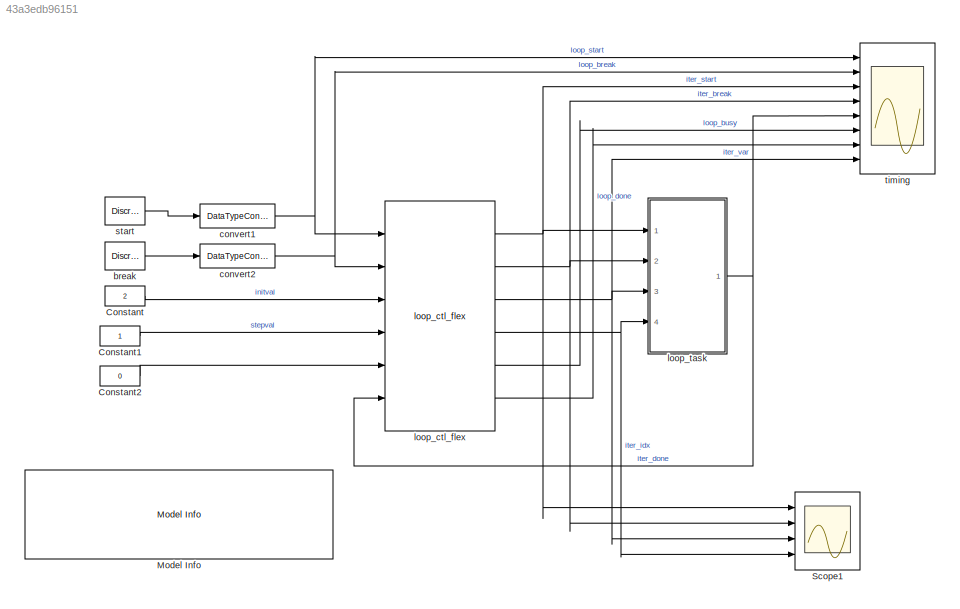
MODEL slx_43a3edb96151
KIND model
CONFIG AbsTol = auto
CONFIG EnableMultiTasking = off
CONFIG FixedStep = auto
CONFIG MaxStep = auto
CONFIG MinStep = auto
CONFIG RelTol = 1e-3
CONFIG SampleTimeConstraint = Unconstrained
CONFIG Solver = FixedStepDiscrete
CONFIG SolverName = FixedStepDiscrete
CONFIG StartTime = 0.0
CONFIG StopTime = 400
BLOCK [Constant] Constant
  OutDataTypeStr = fixdt(1,8,4)
  SampleTime = 1
  Value = 2
BLOCK [Constant] Constant1
  OutDataTypeStr = fixdt(1,8,4)
  SampleTime = 1
BLOCK [Constant] Constant2
  OutDataTypeStr = fixdt(0,3,0)
  SampleTime = 1
  Value = 0
BLOCK [Reference] Model Info  REF=simulink/Model-Wide
Utilities/Model Info
  Ports = []
  SourceBlock = simulink/Model-Wide\nUtilities/Model Info
  SourceProductBaseCode = SL
  SourceProductName = Simulink
  SourceType = CMBlock
BLOCK [Scope] Scope1
  Floating = off
  NumInputPorts = 4
  Ports = [4]
  ScopeSpecificationString = Simulink.scopes.TimeScopeBlockCfg('CurrentConfiguration', extmgr.ConfigurationSet(extmgr.Configuration('Core','General UI',true),extmgr.Configuration('Core','Source UI',true),extmgr.Configuration('Sources','WiredSimulink',true,'DataLoggingVariableName','ScopeData1'),extmgr.Configuration('Visuals','Time Domain',true,'SerializedDisplays',{struct('MinYLimReal','-0.125','MaxYLimReal','1.125','YLabelRe...<+3438ch>
BLOCK [DiscretePulseGenerator] break
  Period = 200
  PhaseDelay = 106
  Ports = [0, 1]
BLOCK [DataTypeConversion] convert1
  OutDataTypeStr = boolean
  RndMeth = Floor
  SaturateOnIntegerOverflow = off
BLOCK [DataTypeConversion] convert2
  OutDataTypeStr = boolean
  RndMeth = Floor
  SaturateOnIntegerOverflow = off
BLOCK [Reference] loop_ctl_flex  REF=lib_dsphdlcontrol_v1/loop_ctl_flex  (lib defined in slx_169a934beb0a)
  Ports = [6, 6]
  SourceBlock = lib_dsphdlcontrol_v1/loop_ctl_flex
  SourceProductName = DSPHDL Library
  SourceType = Flexible Loop Controller
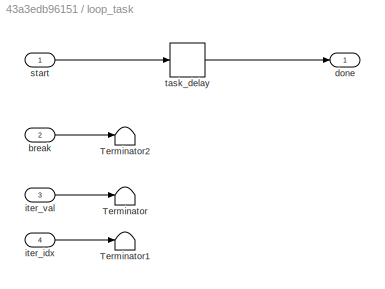
BLOCK [SubSystem] loop_task
  Ports = [4, 1]
  RequestExecContextInheritance = off
BLOCK [Terminator] loop_task/Terminator
BLOCK [Terminator] loop_task/Terminator1
BLOCK [Terminator] loop_task/Terminator2
BLOCK [Inport] loop_task/break
  IconDisplay = Port number
  Port = 2
BLOCK [Outport] loop_task/done
  IconDisplay = Port number
BLOCK [Inport] loop_task/iter_idx
  IconDisplay = Port number
  Port = 4
BLOCK [Inport] loop_task/iter_val
  IconDisplay = Port number
  Port = 3
BLOCK [Inport] loop_task/start
  IconDisplay = Port number
BLOCK [Delay] loop_task/task_delay
  DelayLength = 3
  InitialCondition = 0
  InputPortMap = u0
  Ports = [1, 1]
BLOCK [DiscretePulseGenerator] start
  Period = 100
  PhaseDelay = 5
  Ports = [0, 1]
BLOCK [Scope] timing
  Floating = off
  NumInputPorts = 8
  Ports = [8]
  ScopeSpecificationString = Simulink.scopes.TimeScopeBlockCfg('CurrentConfiguration', extmgr.ConfigurationSet(extmgr.Configuration('Core','General UI',true),extmgr.Configuration('Core','Source UI',true),extmgr.Configuration('Sources','WiredSimulink',true),extmgr.Configuration('Visuals','Time Domain',true,'SerializedDisplays',{struct('MinYLimReal','-0.125','MaxYLimReal','1.125','YLabelReal','','MinYLimMag','0.00000','MaxYLimM...<+6197ch>
LINE Constant1:1 -> loop_ctl_flex:4
LINE Constant2:1 -> loop_ctl_flex:5
LINE Constant:1 -> loop_ctl_flex:3
LINE break:1 -> convert2:1
NET convert1:1 -> loop_ctl_flex:1, timing:1
NET convert2:1 -> loop_ctl_flex:2, timing:2
NET loop_ctl_flex:1 -> Scope1:1, loop_task:1, timing:3
NET loop_ctl_flex:2 -> Scope1:2, loop_task:2, timing:4
NET loop_ctl_flex:3 -> Scope1:3, loop_task:3, timing:8
NET loop_ctl_flex:4 -> Scope1:4, loop_task:4
LINE loop_ctl_flex:5 -> timing:6
LINE loop_ctl_flex:6 -> timing:7
LINE loop_task/break:1 -> loop_task/Terminator2:1
LINE loop_task/iter_idx:1 -> loop_task/Terminator1:1
LINE loop_task/iter_val:1 -> loop_task/Terminator:1
LINE loop_task/start:1 -> loop_task/task_delay:1
LINE loop_task/task_delay:1 -> loop_task/done:1
NET loop_task:1 -> loop_ctl_flex:6, timing:5
LINE start:1 -> convert1:1
note: NET lines group one-source signal fan-out (src -> all destinations, sorted); 1:1 wires keep LINE
